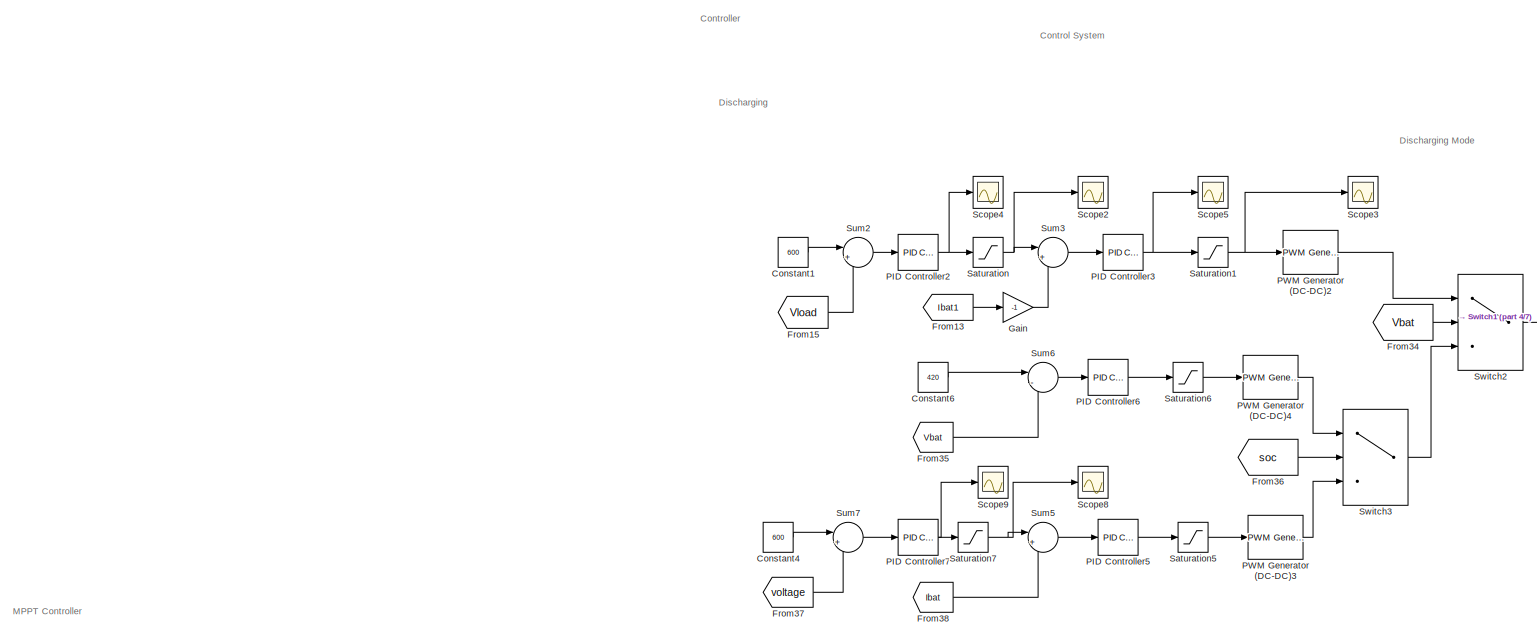
[diagram: root canvas - part 1/7, top left region]
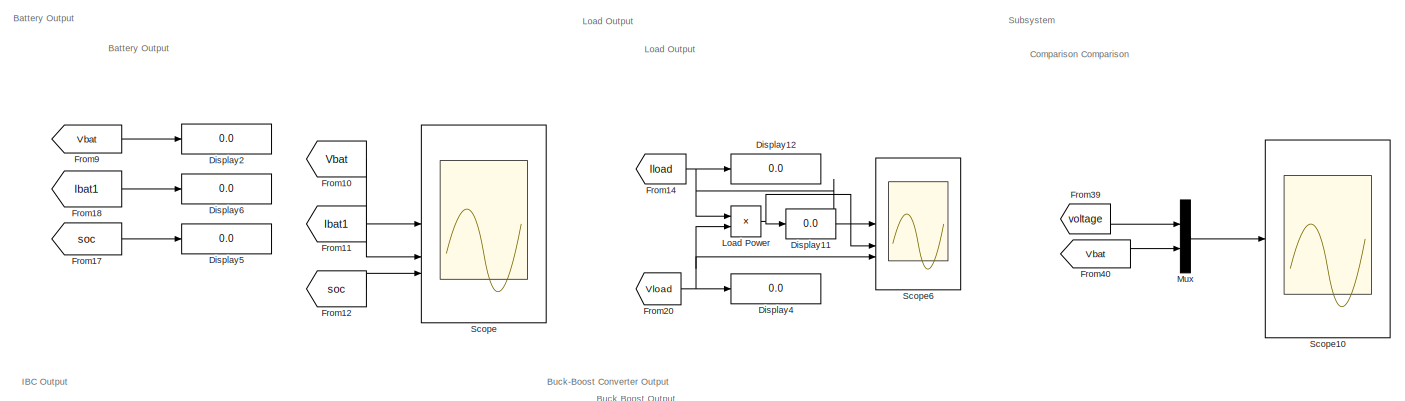
[diagram: root canvas - part 2/7, top right region]
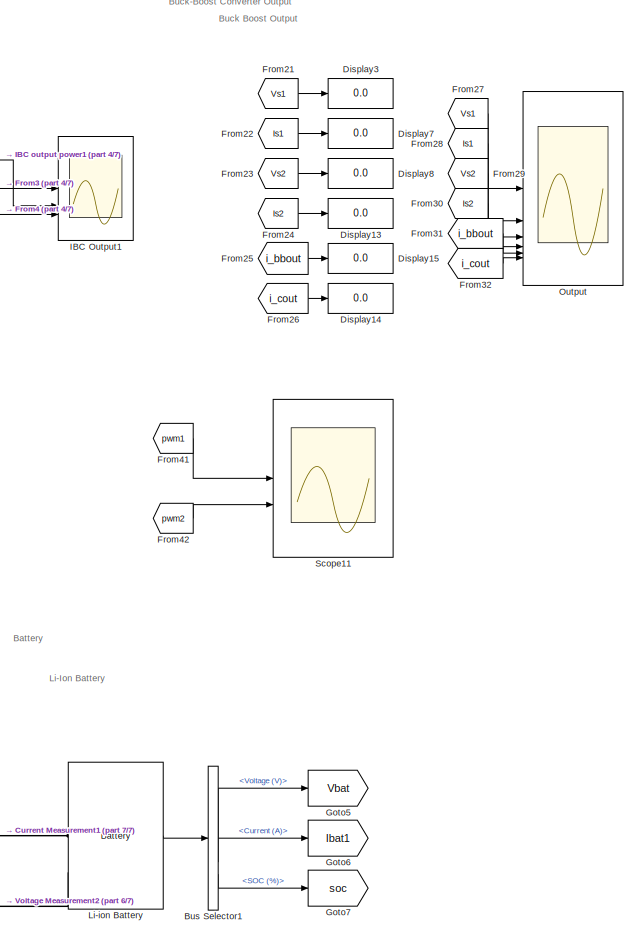
[diagram: root canvas - part 3/7, bottom right region]
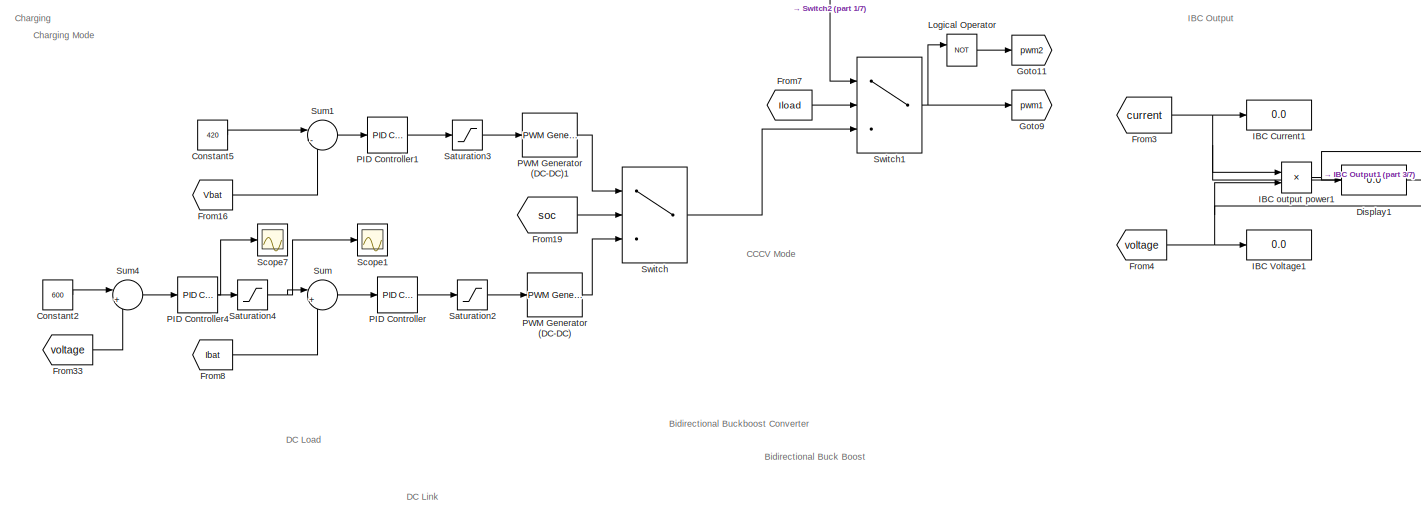
[diagram: root canvas - part 4/7, central region]
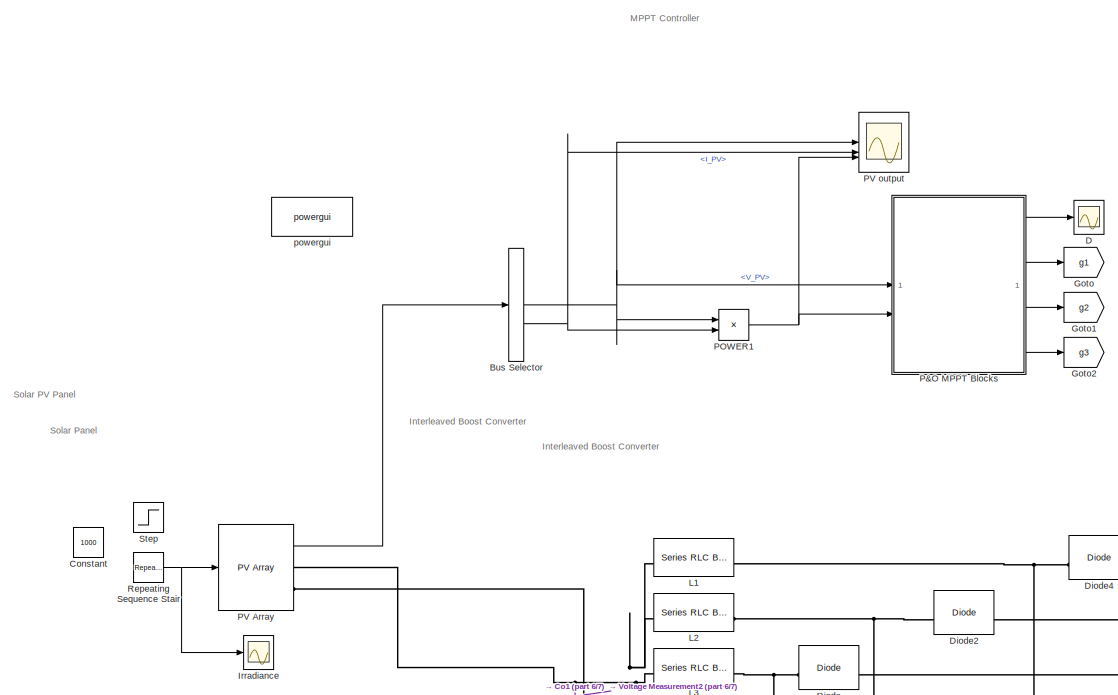
[diagram: root canvas - part 5/7, middle left region]
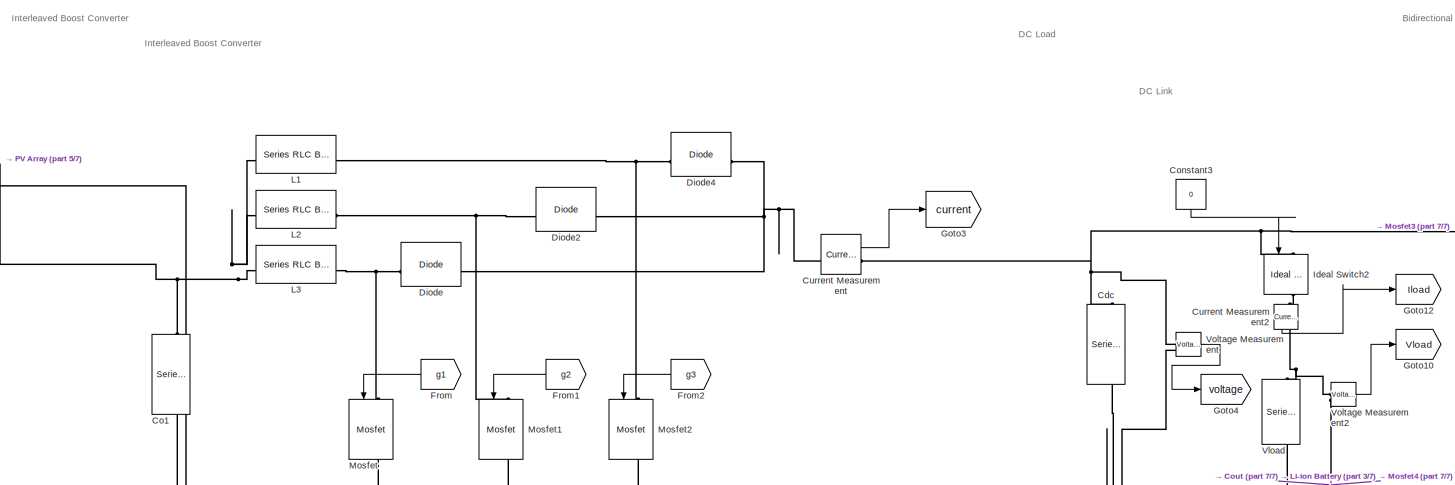
[diagram: root canvas - part 6/7, bottom left region]
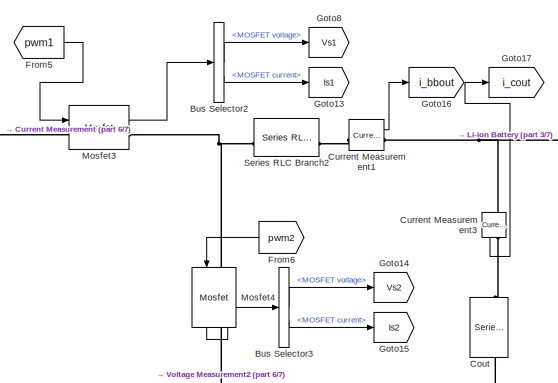
[diagram: root canvas - part 7/7, bottom center region]
MODEL slx_fe34f8055bf5
KIND model
CONFIG AbsTol = auto
CONFIG EnableMultiTasking = off
CONFIG FixedStep = auto
CONFIG MaxStep = auto
CONFIG MinStep = auto
CONFIG RelTol = 1e-3
CONFIG SampleTimeConstraint = Unconstrained
CONFIG SolverName = VariableStepAuto
CONFIG StartTime = 0.0
CONFIG StopTime = 1.2
BLOCK [BusSelector] Bus Selector
  OutputSignals = V_PV,I_PV
BLOCK [BusSelector] Bus Selector1
  OutputSignals = Voltage (V),Current (A),SOC (%)
BLOCK [BusSelector] Bus Selector2
  OutputSignals = MOSFET voltage,MOSFET current
BLOCK [BusSelector] Bus Selector3
  OutputSignals = MOSFET voltage,MOSFET current
BLOCK [Reference] Cdc  REF=spsSeriesRLCBranchLib/Series RLC Branch
  NameLocation = left
  SourceBlock = spsSeriesRLCBranchLib/Series RLC Branch
  SourceType = Series RLC Branch
BLOCK [Reference] Co1  REF=spsSeriesRLCBranchLib/Series RLC Branch
  NameLocation = left
  SourceBlock = spsSeriesRLCBranchLib/Series RLC Branch
  SourceType = Series RLC Branch
BLOCK [Constant] Constant
  Value = 1000
BLOCK [Constant] Constant1
  Value = 600
BLOCK [Constant] Constant2
  Value = 600
BLOCK [Constant] Constant3
  NameLocation = left
  Value = 0
BLOCK [Constant] Constant4
  Value = 600
BLOCK [Constant] Constant5
  Value = 420
BLOCK [Constant] Constant6
  Value = 420
BLOCK [Reference] Cout  REF=spsSeriesRLCBranchLib/Series RLC Branch
  LibrarySourceBlock = sps_lib/Passives/Series RLC Branch
  NameLocation = left
  SourceBlock = spsSeriesRLCBranchLib/Series RLC Branch
  SourceType = Series RLC Branch
BLOCK [Reference] Current Measurement  REF=spsCurrentMeasurementLib/Current Measurement
  LibrarySourceBlock = sps_lib/Sensors and Measurements/Current Measurement
  SourceBlock = spsCurrentMeasurementLib/Current Measurement
  SourceType = Current Measurement
  UserDataPersistent = on
BLOCK [Reference] Current Measurement1  REF=spsCurrentMeasurementLib/Current Measurement
  LibrarySourceBlock = sps_lib/Sensors and Measurements/Current Measurement
  SourceBlock = spsCurrentMeasurementLib/Current Measurement
  SourceType = Current Measurement
  UserDataPersistent = on
BLOCK [Reference] Current Measurement2  REF=spsCurrentMeasurementLib/Current Measurement
  LibrarySourceBlock = sps_lib/Sensors and Measurements/Current Measurement
  NameLocation = left
  SourceBlock = spsCurrentMeasurementLib/Current Measurement
  SourceType = Current Measurement
  UserDataPersistent = on
BLOCK [Reference] Current Measurement3  REF=spsCurrentMeasurementLib/Current Measurement
  LibrarySourceBlock = sps_lib/Sensors and Measurements/Current Measurement
  NameLocation = left
  SourceBlock = spsCurrentMeasurementLib/Current Measurement
  SourceType = Current Measurement
  UserDataPersistent = on
BLOCK [Scope] D
  Floating = off
  NameLocation = right
  NumInputPorts = 1
  ScopeSpecificationString = Simulink.scopes.TimeScopeBlockCfg('CurrentConfiguration', extmgr.ConfigurationSet(extmgr.Configuration('Core','General UI',true,'FigureColor',[1 1 1]),extmgr.Configuration('Core','Source UI',true),extmgr.Configuration('Sources','WiredSimulink',true,'DataLoggingVariableName','ScopeData3'),extmgr.Configuration('Visuals','Time Domain',true,'SerializedDisplays',{struct('MinYLimReal','0.055','MaxYLimRe...<+1736ch>
BLOCK [Reference] Diode  REF=spsDiodeLib/Diode
  SourceBlock = spsDiodeLib/Diode
  SourceType = Diode
BLOCK [Reference] Diode2  REF=spsDiodeLib/Diode
  SourceBlock = spsDiodeLib/Diode
  SourceType = Diode
BLOCK [Reference] Diode4  REF=spsDiodeLib/Diode
  SourceBlock = spsDiodeLib/Diode
  SourceType = Diode
BLOCK [Display] Display1
  Decimation = 1
BLOCK [Display] Display11
  Decimation = 1
BLOCK [Display] Display12
  Decimation = 1
BLOCK [Display] Display13
  Decimation = 1
BLOCK [Display] Display14
  Decimation = 1
BLOCK [Display] Display15
  Decimation = 1
BLOCK [Display] Display2
  Decimation = 1
BLOCK [Display] Display3
  Decimation = 1
BLOCK [Display] Display4
  Decimation = 1
BLOCK [Display] Display5
  Decimation = 1
BLOCK [Display] Display6
  Decimation = 1
BLOCK [Display] Display7
  Decimation = 1
BLOCK [Display] Display8
  Decimation = 1
BLOCK [From] From
  GotoTag = g1
  NameLocation = top
BLOCK [From] From1
  GotoTag = g2
  NameLocation = top
BLOCK [From] From10
  GotoTag = Vbat
BLOCK [From] From11
  GotoTag = Ibat1
BLOCK [From] From12
  GotoTag = soc
BLOCK [From] From13
  GotoTag = Ibat1
BLOCK [From] From14
  GotoTag = Iload
BLOCK [From] From15
  GotoTag = Vload
BLOCK [From] From16
  GotoTag = Vbat
BLOCK [From] From17
  GotoTag = soc
BLOCK [From] From18
  GotoTag = Ibat1
BLOCK [From] From19
  GotoTag = soc
BLOCK [From] From2
  GotoTag = g3
  NameLocation = top
BLOCK [From] From20
  GotoTag = Vload
BLOCK [From] From21
  GotoTag = Vs1
BLOCK [From] From22
  GotoTag = Is1
BLOCK [From] From23
  GotoTag = Vs2
BLOCK [From] From24
  GotoTag = Is2
BLOCK [From] From25
  GotoTag = i_bbout
BLOCK [From] From26
  GotoTag = i_cout
BLOCK [From] From27
  GotoTag = Vs1
BLOCK [From] From28
  GotoTag = Is1
BLOCK [From] From29
  GotoTag = Vs2
BLOCK [From] From3
  GotoTag = current
BLOCK [From] From30
  GotoTag = Is2
BLOCK [From] From31
  GotoTag = i_bbout
BLOCK [From] From32
  GotoTag = i_cout
BLOCK [From] From33
  GotoTag = voltage
BLOCK [From] From34
  GotoTag = Vbat
BLOCK [From] From35
  GotoTag = Vbat
BLOCK [From] From36
  GotoTag = soc
BLOCK [From] From37
  GotoTag = voltage
BLOCK [From] From38
  GotoTag = Ibat
BLOCK [From] From39
  GotoTag = voltage
BLOCK [From] From4
  GotoTag = voltage
BLOCK [From] From40
  GotoTag = Vbat
BLOCK [From] From41
  GotoTag = pwm1
BLOCK [From] From42
  GotoTag = pwm2
BLOCK [From] From5
  GotoTag = pwm1
BLOCK [From] From6
  GotoTag = pwm2
  NameLocation = top
BLOCK [From] From7
  GotoTag = Iload
BLOCK [From] From8
  GotoTag = Ibat
BLOCK [From] From9
  GotoTag = Vbat
BLOCK [Gain] Gain
  Gain = -1
BLOCK [Goto] Goto
  GotoTag = g1
BLOCK [Goto] Goto1
  GotoTag = g2
BLOCK [Goto] Goto10
  GotoTag = Vload
BLOCK [Goto] Goto11
  GotoTag = pwm2
BLOCK [Goto] Goto12
  GotoTag = Iload
BLOCK [Goto] Goto13
  GotoTag = Is1
BLOCK [Goto] Goto14
  GotoTag = Vs2
BLOCK [Goto] Goto15
  GotoTag = Is2
BLOCK [Goto] Goto16
  GotoTag = i_bbout
BLOCK [Goto] Goto17
  GotoTag = i_cout
BLOCK [Goto] Goto2
  GotoTag = g3
BLOCK [Goto] Goto3
  GotoTag = current
BLOCK [Goto] Goto4
  GotoTag = voltage
BLOCK [Goto] Goto5
  GotoTag = Vbat
BLOCK [Goto] Goto6
  GotoTag = Ibat1
BLOCK [Goto] Goto7
  GotoTag = soc
BLOCK [Goto] Goto8
  GotoTag = Vs1
BLOCK [Goto] Goto9
  GotoTag = pwm1
BLOCK [Display] IBC Current1
  Decimation = 1
  NameLocation = top
BLOCK [Scope] IBC Output1
  Floating = off
  NameLocation = right
  NumInputPorts = 3
  ScopeSpecificationString = Simulink.scopes.TimeScopeBlockCfg('CurrentConfiguration', extmgr.ConfigurationSet(extmgr.Configuration('Core','General UI',true,'FigureColor',[1 1 1]),extmgr.Configuration('Core','Source UI',true),extmgr.Configuration('Sources','WiredSimulink',true,'DataLoggingVariableName','ScopeData2'),extmgr.Configuration('Visuals','Time Domain',true,'SerializedDisplays',{struct('MinYLimReal','-1.40466','MaxYLi...<+5829ch>
BLOCK [Display] IBC Voltage1
  Decimation = 1
BLOCK [Product] IBC output power1
BLOCK [Reference] Ideal Switch2  REF=spsIdealSwitchLib/Ideal Switch
  LibrarySourceBlock = sps_lib/Power Electronics/Ideal Switch
  NameLocation = left
  SourceBlock = spsIdealSwitchLib/Ideal Switch
  SourceType = Ideal Switch
BLOCK [Scope] Irradiance
  Floating = off
  NumInputPorts = 1
  ScopeSpecificationString = Simulink.scopes.TimeScopeBlockCfg('CurrentConfiguration', extmgr.ConfigurationSet(extmgr.Configuration('Core','General UI',true,'FigureColor',[1 1 1]),extmgr.Configuration('Core','Source UI',true),extmgr.Configuration('Sources','WiredSimulink',true,'DataLoggingVariableName','ScopeData4'),extmgr.Configuration('Visuals','Time Domain',true,'SerializedDisplays',{struct('MinYLimReal','550.00000','MaxYL...<+1779ch>
BLOCK [Reference] L1  REF=spsSeriesRLCBranchLib/Series RLC Branch
  NameLocation = top
  SourceBlock = spsSeriesRLCBranchLib/Series RLC Branch
  SourceType = Series RLC Branch
BLOCK [Reference] L2  REF=spsSeriesRLCBranchLib/Series RLC Branch
  NameLocation = top
  SourceBlock = spsSeriesRLCBranchLib/Series RLC Branch
  SourceType = Series RLC Branch
BLOCK [Reference] L3  REF=spsSeriesRLCBranchLib/Series RLC Branch
  NameLocation = top
  SourceBlock = spsSeriesRLCBranchLib/Series RLC Branch
  SourceType = Series RLC Branch
BLOCK [Reference] Li-ion Battery  REF=spsBatteryLib/Battery
  LibrarySourceBlock = sps_lib/Sources/Battery
  SourceBlock = spsBatteryLib/Battery
  SourceType = Battery
BLOCK [Product] Load Power
BLOCK [Logic] Logical Operator
  AllPortsSameDT = off
  Operator = NOT
  OutDataTypeStr = boolean
BLOCK [Reference] Mosfet  REF=spsMosfetLib/Mosfet
  NameLocation = left
  SourceBlock = spsMosfetLib/Mosfet
  SourceType = Mosfet
BLOCK [Reference] Mosfet1  REF=spsMosfetLib/Mosfet
  NameLocation = left
  SourceBlock = spsMosfetLib/Mosfet
  SourceType = Mosfet
BLOCK [Reference] Mosfet2  REF=spsMosfetLib/Mosfet
  NameLocation = left
  SourceBlock = spsMosfetLib/Mosfet
  SourceType = Mosfet
BLOCK [Reference] Mosfet3  REF=spsMosfetLib/Mosfet
  LibrarySourceBlock = sps_lib/Power Electronics/Mosfet
  SourceBlock = spsMosfetLib/Mosfet
  SourceType = Mosfet
BLOCK [Reference] Mosfet4  REF=spsMosfetLib/Mosfet
  LibrarySourceBlock = sps_lib/Power Electronics/Mosfet
  NameLocation = left
  SourceBlock = spsMosfetLib/Mosfet
  SourceType = Mosfet
BLOCK [Mux] Mux
  DisplayOption = bar
  Inputs = 2
BLOCK [Scope] Output
  Floating = off
  NameLocation = right
  NumInputPorts = 6
  ScopeSpecificationString = Simulink.scopes.TimeScopeBlockCfg('CurrentConfiguration', extmgr.ConfigurationSet(extmgr.Configuration('Core','General UI',true,'FigureColor',[1 1 1]),extmgr.Configuration('Core','Source UI',true),extmgr.Configuration('Sources','WiredSimulink',true,'DataLoggingVariableName','ScopeData1'),extmgr.Configuration('Visuals','Time Domain',true,'SerializedDisplays',{struct('MinYLimReal','-115.39116','MaxY...<+8508ch>
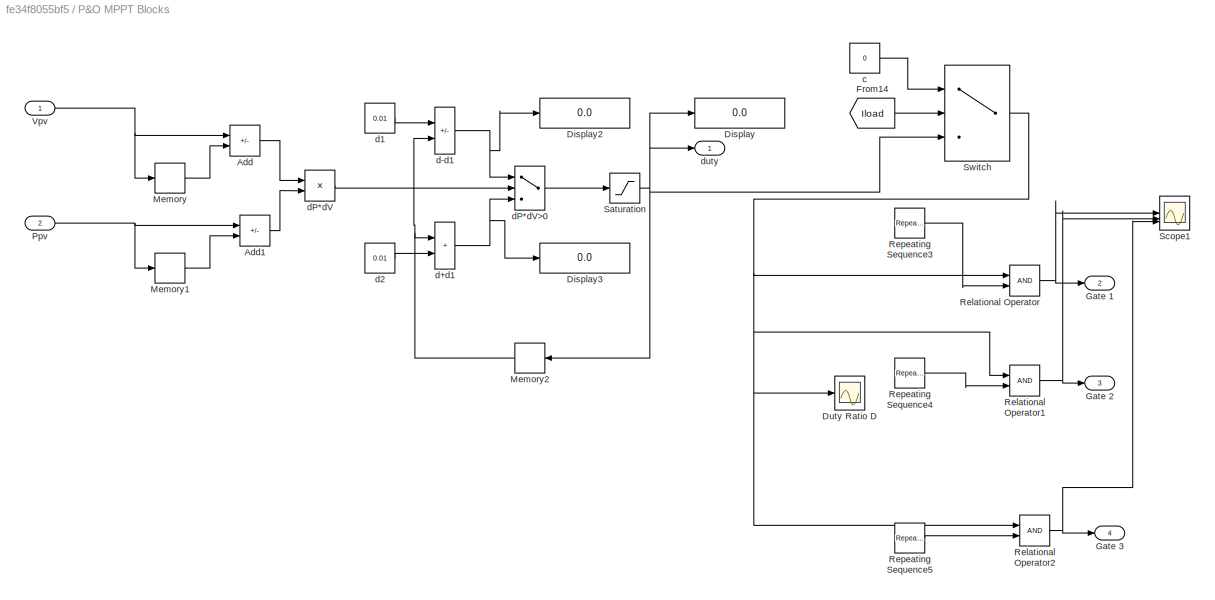
BLOCK [SubSystem] P&O MPPT Blocks
BLOCK [Sum] P&O MPPT Blocks/Add
  IconShape = rectangular
  Inputs = +-
BLOCK [Sum] P&O MPPT Blocks/Add1
  IconShape = rectangular
  Inputs = +-
BLOCK [Display] P&O MPPT Blocks/Display
  Decimation = 1
BLOCK [Display] P&O MPPT Blocks/Display2
  Decimation = 1
BLOCK [Display] P&O MPPT Blocks/Display3
  Decimation = 1
BLOCK [Scope] P&O MPPT Blocks/Duty Ratio D
  Floating = off
  NumInputPorts = 1
  ScopeSpecificationString = Simulink.scopes.TimeScopeBlockCfg('CurrentConfiguration', extmgr.ConfigurationSet(extmgr.Configuration('Core','General UI',true,'FigureColor',[1 1 1]),extmgr.Configuration('Core','Source UI',true),extmgr.Configuration('Sources','WiredSimulink',true,'DataLoggingVariableName','ScopeData2'),extmgr.Configuration('Visuals','Time Domain',true,'SerializedDisplays',{struct('MinYLimReal','-0.00875','MaxYLi...<+1759ch>
BLOCK [From] P&O MPPT Blocks/From14
  GotoTag = Iload
BLOCK [Outport] P&O MPPT Blocks/Gate 1
  Port = 2
  VectorParamsAs1DForOutWhenUnconnected = off
BLOCK [Outport] P&O MPPT Blocks/Gate 2
  Port = 3
  VectorParamsAs1DForOutWhenUnconnected = off
BLOCK [Outport] P&O MPPT Blocks/Gate 3
  Port = 4
  VectorParamsAs1DForOutWhenUnconnected = off
BLOCK [Memory] P&O MPPT Blocks/Memory
  InheritSampleTime = on
BLOCK [Memory] P&O MPPT Blocks/Memory1
  InheritSampleTime = on
BLOCK [Memory] P&O MPPT Blocks/Memory2
  InheritSampleTime = on
  NameLocation = top
BLOCK [Inport] P&O MPPT Blocks/Ppv
  Port = 2
BLOCK [RelationalOperator] P&O MPPT Blocks/Relational Operator
  InputSameDT = off
  OutDataTypeStr = boolean
  RndMeth = Simplest
BLOCK [RelationalOperator] P&O MPPT Blocks/Relational Operator1
  InputSameDT = off
  OutDataTypeStr = boolean
  RndMeth = Simplest
BLOCK [RelationalOperator] P&O MPPT Blocks/Relational Operator2
  InputSameDT = off
  OutDataTypeStr = boolean
  RndMeth = Simplest
BLOCK [Reference] P&O MPPT Blocks/Repeating Sequence3  REF=simulink/Sources/Repeating
Sequence
  SourceBlock = simulink/Sources/Repeating\nSequence
  SourceType = Repeating table
BLOCK [Reference] P&O MPPT Blocks/Repeating Sequence4  REF=simulink/Sources/Repeating
Sequence
  SourceBlock = simulink/Sources/Repeating\nSequence
  SourceType = Repeating table
BLOCK [Reference] P&O MPPT Blocks/Repeating Sequence5  REF=simulink/Sources/Repeating
Sequence
  SourceBlock = simulink/Sources/Repeating\nSequence
  SourceType = Repeating table
BLOCK [Saturate] P&O MPPT Blocks/Saturation
  LowerLimit = 0.1
  SampleTime = 6e-4
  UpperLimit = 0.9
BLOCK [Scope] P&O MPPT Blocks/Scope1
  Floating = off
  NumInputPorts = 3
  ScopeSpecificationString = Simulink.scopes.TimeScopeBlockCfg('CurrentConfiguration', extmgr.ConfigurationSet(extmgr.Configuration('Core','General UI',true),extmgr.Configuration('Core','Source UI',true),extmgr.Configuration('Sources','WiredSimulink',true,'DataLoggingVariableName','ScopeData1'),extmgr.Configuration('Visuals','Time Domain',true,'SerializedDisplays',{struct('MinYLimReal','-0.125','MaxYLimReal','1.125','YLabelRe...<+2843ch>
BLOCK [Switch] P&O MPPT Blocks/Switch
  Criteria = u2 > Threshold
  InputSameDT = off
  SaturateOnIntegerOverflow = off
  Threshold = 0.1
BLOCK [Inport] P&O MPPT Blocks/Vpv
BLOCK [Constant] P&O MPPT Blocks/c
  Value = 0
BLOCK [Sum] P&O MPPT Blocks/d+d1
  IconShape = rectangular
BLOCK [Sum] P&O MPPT Blocks/d-d1
  IconShape = rectangular
  Inputs = -+
BLOCK [Constant] P&O MPPT Blocks/d1
  Value = 0.01
BLOCK [Constant] P&O MPPT Blocks/d2
  Value = 0.01
BLOCK [Product] P&O MPPT Blocks/dP*dV
  RndMeth = Zero
BLOCK [Switch] P&O MPPT Blocks/dP*dV>0
  Criteria = u2 > Threshold
  InputSameDT = off
  SaturateOnIntegerOverflow = off
BLOCK [Outport] P&O MPPT Blocks/duty
BLOCK [Reference] PID Controller  REF=slpidlib/PID Controller
  LibrarySourceBlock = simulink/Continuous/PID Controller
  SourceBlock = slpidlib/PID Controller
  SourceType = PID 1dof
BLOCK [Reference] PID Controller1  REF=slpidlib/PID Controller
  LibrarySourceBlock = simulink/Continuous/PID Controller
  SourceBlock = slpidlib/PID Controller
  SourceType = PID 1dof
BLOCK [Reference] PID Controller2  REF=slpidlib/PID Controller
  LibrarySourceBlock = simulink/Continuous/PID Controller
  SourceBlock = slpidlib/PID Controller
  SourceType = PID 1dof
BLOCK [Reference] PID Controller3  REF=slpidlib/PID Controller
  LibrarySourceBlock = simulink/Continuous/PID Controller
  SourceBlock = slpidlib/PID Controller
  SourceType = PID 1dof
BLOCK [Reference] PID Controller4  REF=slpidlib/PID Controller
  LibrarySourceBlock = simulink/Continuous/PID Controller
  SourceBlock = slpidlib/PID Controller
  SourceType = PID 1dof
BLOCK [Reference] PID Controller5  REF=slpidlib/PID Controller
  LibrarySourceBlock = simulink/Continuous/PID Controller
  SourceBlock = slpidlib/PID Controller
  SourceType = PID 1dof
BLOCK [Reference] PID Controller6  REF=slpidlib/PID Controller
  LibrarySourceBlock = simulink/Continuous/PID Controller
  SourceBlock = slpidlib/PID Controller
  SourceType = PID 1dof
BLOCK [Reference] PID Controller7  REF=slpidlib/PID Controller
  LibrarySourceBlock = simulink/Continuous/PID Controller
  SourceBlock = slpidlib/PID Controller
  SourceType = PID 1dof
BLOCK [Product] POWER1
BLOCK [Reference] PV Array  REF=spsPVArrayLib/PV Array
  SourceBlock = spsPVArrayLib/PV Array
  SourceType = PV array
BLOCK [Scope] PV output
  Floating = off
  NumInputPorts = 3
  ScopeSpecificationString = Simulink.scopes.TimeScopeBlockCfg('CurrentConfiguration', extmgr.ConfigurationSet(extmgr.Configuration('Core','General UI',true,'FigureColor',[1 1 1]),extmgr.Configuration('Core','Source UI',true),extmgr.Configuration('Sources','WiredSimulink',true,'DataLoggingVariableName','ScopeData5'),extmgr.Configuration('Visuals','Time Domain',true,'SerializedDisplays',{struct('MinYLimReal','-47.1745','MaxYLi...<+3119ch>
BLOCK [Reference] PWM Generator (DC-DC)  REF=spsPWMGeneratorDCDCLib/PWM Generator
(DC-DC)
  LibrarySourceBlock = sps_lib/Power Electronics/Power Electronics Control/PWM Generator\n(DC-DC)
  SourceBlock = spsPWMGeneratorDCDCLib/PWM Generator\n(DC-DC)
  SourceType = PWM Generator (DC-DC)
BLOCK [Reference] PWM Generator (DC-DC)1  REF=spsPWMGeneratorDCDCLib/PWM Generator
(DC-DC)
  LibrarySourceBlock = sps_lib/Power Electronics/Power Electronics Control/PWM Generator\n(DC-DC)
  SourceBlock = spsPWMGeneratorDCDCLib/PWM Generator\n(DC-DC)
  SourceType = PWM Generator (DC-DC)
BLOCK [Reference] PWM Generator (DC-DC)2  REF=spsPWMGeneratorDCDCLib/PWM Generator
(DC-DC)
  LibrarySourceBlock = sps_lib/Power Electronics/Power Electronics Control/PWM Generator\n(DC-DC)
  SourceBlock = spsPWMGeneratorDCDCLib/PWM Generator\n(DC-DC)
  SourceType = PWM Generator (DC-DC)
BLOCK [Reference] PWM Generator (DC-DC)3  REF=spsPWMGeneratorDCDCLib/PWM Generator
(DC-DC)
  LibrarySourceBlock = sps_lib/Power Electronics/Power Electronics Control/PWM Generator\n(DC-DC)
  SourceBlock = spsPWMGeneratorDCDCLib/PWM Generator\n(DC-DC)
  SourceType = PWM Generator (DC-DC)
BLOCK [Reference] PWM Generator (DC-DC)4  REF=spsPWMGeneratorDCDCLib/PWM Generator
(DC-DC)
  LibrarySourceBlock = sps_lib/Power Electronics/Power Electronics Control/PWM Generator\n(DC-DC)
  SourceBlock = spsPWMGeneratorDCDCLib/PWM Generator\n(DC-DC)
  SourceType = PWM Generator (DC-DC)
BLOCK [Reference] Repeating Sequence Stair  REF=simulink/Sources/Repeating
Sequence
Stair
  SourceBlock = simulink/Sources/Repeating\nSequence\nStair
  SourceType = Repeating Sequence Stair
BLOCK [Saturate] Saturation
  LowerLimit = 0
  UpperLimit = 30
BLOCK [Saturate] Saturation1
  LowerLimit = 0.1
  UpperLimit = 0.6
BLOCK [Saturate] Saturation2
  LowerLimit = 0.1
  UpperLimit = 22
BLOCK [Saturate] Saturation3
  LowerLimit = 0.1
  UpperLimit = 0.9
BLOCK [Saturate] Saturation4
  LowerLimit = 0
  UpperLimit = 10
BLOCK [Saturate] Saturation5
  LowerLimit = 0.1
  UpperLimit = 22
BLOCK [Saturate] Saturation6
  LowerLimit = 0.1
  UpperLimit = 0.9
BLOCK [Saturate] Saturation7
  LowerLimit = 0
  UpperLimit = 10
BLOCK [Scope] Scope
  Floating = off
  NumInputPorts = 3
  ScopeSpecificationString = Simulink.scopes.TimeScopeBlockCfg('CurrentConfiguration', extmgr.ConfigurationSet(extmgr.Configuration('Core','General UI',true,'FigureColor',[1 1 1]),extmgr.Configuration('Core','Source UI',true),extmgr.Configuration('Sources','WiredSimulink',true,'DataLoggingVariableName','ScopeData1'),extmgr.Configuration('Visuals','Time Domain',true,'SerializedDisplays',{struct('MinYLimReal','388.40914','MaxYL...<+3421ch>
BLOCK [Scope] Scope1
  Floating = off
  NumInputPorts = 1
  ScopeSpecificationString = Simulink.scopes.TimeScopeBlockCfg('CurrentConfiguration', extmgr.ConfigurationSet(extmgr.Configuration('Core','General UI',true),extmgr.Configuration('Core','Source UI',true),extmgr.Configuration('Sources','WiredSimulink',true,'DataLoggingVariableName','ScopeData1'),extmgr.Configuration('Visuals','Time Domain',true,'SerializedDisplays',{struct('MinYLimReal','0.85','MaxYLimReal','1.05','YLabelReal'...<+1490ch>
BLOCK [Scope] Scope10
  Floating = off
  NumInputPorts = 1
  ScopeSpecificationString = Simulink.scopes.TimeScopeBlockCfg('CurrentConfiguration', extmgr.ConfigurationSet(extmgr.Configuration('Core','General UI',true,'FigureColor',[1 1 1]),extmgr.Configuration('Core','Source UI',true),extmgr.Configuration('Sources','WiredSimulink',true,'DataLoggingVariableName','ScopeData1'),extmgr.Configuration('Visuals','Time Domain',true,'SerializedDisplays',{struct('MinYLimReal','-171.16426','MaxY...<+1943ch>
BLOCK [Scope] Scope11
  Floating = off
  NumInputPorts = 2
  ScopeSpecificationString = Simulink.scopes.TimeScopeBlockCfg('CurrentConfiguration', extmgr.ConfigurationSet(extmgr.Configuration('Core','General UI',true,'FigureColor',[1 1 1]),extmgr.Configuration('Core','Source UI',true),extmgr.Configuration('Sources','WiredSimulink',true,'DataLoggingVariableName','ScopeData1'),extmgr.Configuration('Visuals','Time Domain',true,'SerializedDisplays',{struct('MinYLimReal','-0.125','MaxYLimR...<+3972ch>
BLOCK [Scope] Scope2
  Floating = off
  NumInputPorts = 1
  ScopeSpecificationString = Simulink.scopes.TimeScopeBlockCfg('CurrentConfiguration', extmgr.ConfigurationSet(extmgr.Configuration('Core','General UI',true),extmgr.Configuration('Core','Source UI',true),extmgr.Configuration('Sources','WiredSimulink',true,'DataLoggingVariableName','ScopeData7'),extmgr.Configuration('Visuals','Time Domain',true,'SerializedDisplays',{struct('MinYLimReal','0.85','MaxYLimReal','1.05','YLabelReal'...<+1490ch>
BLOCK [Scope] Scope3
  Floating = off
  NumInputPorts = 1
  ScopeSpecificationString = Simulink.scopes.TimeScopeBlockCfg('CurrentConfiguration', extmgr.ConfigurationSet(extmgr.Configuration('Core','General UI',true),extmgr.Configuration('Core','Source UI',true),extmgr.Configuration('Sources','WiredSimulink',true,'DataLoggingVariableName','ScopeData8'),extmgr.Configuration('Visuals','Time Domain',true,'SerializedDisplays',{struct('MinYLimReal','0.17195','MaxYLimReal','0.68089','YLabe...<+1486ch>
BLOCK [Scope] Scope4
  Floating = off
  NumInputPorts = 1
  ScopeSpecificationString = Simulink.scopes.TimeScopeBlockCfg('CurrentConfiguration', extmgr.ConfigurationSet(extmgr.Configuration('Core','General UI',true),extmgr.Configuration('Core','Source UI',true),extmgr.Configuration('Sources','WiredSimulink',true,'DataLoggingVariableName','ScopeData9'),extmgr.Configuration('Visuals','Time Domain',true,'SerializedDisplays',{struct('MinYLimReal','-0.11875','MaxYLimReal','1.06875','YLab...<+1492ch>
BLOCK [Scope] Scope5
  Floating = off
  NumInputPorts = 1
  ScopeSpecificationString = Simulink.scopes.TimeScopeBlockCfg('CurrentConfiguration', extmgr.ConfigurationSet(extmgr.Configuration('Core','General UI',true),extmgr.Configuration('Core','Source UI',true),extmgr.Configuration('Sources','WiredSimulink',true,'DataLoggingVariableName','ScopeData10'),extmgr.Configuration('Visuals','Time Domain',true,'SerializedDisplays',{struct('MinYLimReal','0.09505','MaxYLimReal','1.04499','YLab...<+1462ch>
BLOCK [Scope] Scope6
  Floating = off
  NumInputPorts = 3
  ScopeSpecificationString = Simulink.scopes.TimeScopeBlockCfg('CurrentConfiguration', extmgr.ConfigurationSet(extmgr.Configuration('Core','General UI',true,'FigureColor',[1 1 1]),extmgr.Configuration('Core','Source UI',true),extmgr.Configuration('Sources','WiredSimulink',true,'DataLoggingVariableName','ScopeData11'),extmgr.Configuration('Visuals','Time Domain',true,'SerializedDisplays',{struct('MinYLimReal','-2.15104','MaxYL...<+4227ch>
BLOCK [Scope] Scope7
  Floating = off
  NumInputPorts = 1
  ScopeSpecificationString = Simulink.scopes.TimeScopeBlockCfg('CurrentConfiguration', extmgr.ConfigurationSet(extmgr.Configuration('Core','General UI',true),extmgr.Configuration('Core','Source UI',true),extmgr.Configuration('Sources','WiredSimulink',true,'DataLoggingVariableName','ScopeData2'),extmgr.Configuration('Visuals','Time Domain',true,'SerializedDisplays',{struct('MinYLimReal','0.47008','MaxYLimReal','0.99786','YLabe...<+1561ch>
BLOCK [Scope] Scope8
  Floating = off
  NumInputPorts = 1
  ScopeSpecificationString = Simulink.scopes.TimeScopeBlockCfg('CurrentConfiguration', extmgr.ConfigurationSet(extmgr.Configuration('Core','General UI',true),extmgr.Configuration('Core','Source UI',true),extmgr.Configuration('Sources','WiredSimulink',true,'DataLoggingVariableName','ScopeData1'),extmgr.Configuration('Visuals','Time Domain',true,'SerializedDisplays',{struct('MinYLimReal','0.85','MaxYLimReal','1.05','YLabelReal'...<+1490ch>
BLOCK [Scope] Scope9
  Floating = off
  NumInputPorts = 1
  ScopeSpecificationString = Simulink.scopes.TimeScopeBlockCfg('CurrentConfiguration', extmgr.ConfigurationSet(extmgr.Configuration('Core','General UI',true),extmgr.Configuration('Core','Source UI',true),extmgr.Configuration('Sources','WiredSimulink',true,'DataLoggingVariableName','ScopeData2'),extmgr.Configuration('Visuals','Time Domain',true,'SerializedDisplays',{struct('MinYLimReal','0.47008','MaxYLimReal','0.99786','YLabe...<+1561ch>
BLOCK [Reference] Series RLC Branch2  REF=spsSeriesRLCBranchLib/Series RLC Branch
  LibrarySourceBlock = sps_lib/Passives/Series RLC Branch
  SourceBlock = spsSeriesRLCBranchLib/Series RLC Branch
  SourceType = Series RLC Branch
BLOCK [Step] Step
  After = 500
  Before = 1000
  SampleTime = 0
  Time = 0.25
BLOCK [Sum] Sum
  Inputs = |+-
BLOCK [Sum] Sum1
  Inputs = |-+
BLOCK [Sum] Sum2
  Inputs = |+-
BLOCK [Sum] Sum3
  Inputs = |+-
BLOCK [Sum] Sum4
  Inputs = |+-
BLOCK [Sum] Sum5
  Inputs = |+-
BLOCK [Sum] Sum6
  Inputs = |-+
BLOCK [Sum] Sum7
  Inputs = |+-
BLOCK [Switch] Switch
  Criteria = u2 > Threshold
  InputSameDT = off
  SaturateOnIntegerOverflow = off
  Threshold = 80.1
BLOCK [Switch] Switch1
  Criteria = u2 > Threshold
  InputSameDT = off
  SaturateOnIntegerOverflow = off
  Threshold = 0.1
BLOCK [Switch] Switch2
  Criteria = u2 > Threshold
  InputSameDT = off
  SaturateOnIntegerOverflow = off
  Threshold = 270
BLOCK [Switch] Switch3
  Criteria = u2 > Threshold
  InputSameDT = off
  SaturateOnIntegerOverflow = off
  Threshold = 80.1
BLOCK [Reference] Vload  REF=spsSeriesRLCBranchLib/Series RLC Branch
  NameLocation = left
  SourceBlock = spsSeriesRLCBranchLib/Series RLC Branch
  SourceType = Series RLC Branch
BLOCK [Reference] Voltage Measurement  REF=spsVoltageMeasurementLib/Voltage Measurement
  LibrarySourceBlock = sps_lib/Sensors and Measurements/Voltage Measurement
  SourceBlock = spsVoltageMeasurementLib/Voltage Measurement
  SourceType = Voltage Measurement
  UserDataPersistent = on
BLOCK [Reference] Voltage Measurement2  REF=spsVoltageMeasurementLib/Voltage Measurement
  LibrarySourceBlock = sps_lib/Sensors and Measurements/Voltage Measurement
  SourceBlock = spsVoltageMeasurementLib/Voltage Measurement
  SourceType = Voltage Measurement
  UserDataPersistent = on
BLOCK [Reference] powergui  REF=sps_lib/powergui
  LibrarySourceBlock = sps_lib/powergui
  Priority = 1
  SourceBlock = sps_lib/powergui
  SourceType = PSB option menu block
ANNOTATION (root): Battery Output
ANNOTATION (root): Bidirectional Buck Boost
ANNOTATION (root): Buck Boost Output
ANNOTATION (root): CCCV Mode
ANNOTATION (root): Charging Mode
ANNOTATION (root): Comparison Comparison
ANNOTATION (root): Control System
ANNOTATION (root): DC Link
ANNOTATION (root): Discharging Mode
ANNOTATION (root): IBC Output
ANNOTATION (root): Li-Ion Battery
ANNOTATION (root): Load Output
ANNOTATION (root): Solar Panel
ANNOTATION (root): Interleaved Boost Converter
ANNOTATION (root): MPPT Controller
ANNOTATION (root): Battery
ANNOTATION (root): Bidirectional Buckboost Converter
ANNOTATION (root): Buck-Boost Converter Output
ANNOTATION (root): Charging
ANNOTATION (root): Controller
ANNOTATION (root): DC Load
ANNOTATION (root): Discharging
ANNOTATION (root): Solar PV Panel
ANNOTATION (root): Subsystem
LINE Bus Selector1:1 -> Goto5:1
LINE Bus Selector1:2 -> Goto6:1
LINE Bus Selector1:3 -> Goto7:1
LINE Bus Selector2:1 -> Goto8:1
LINE Bus Selector2:2 -> Goto13:1
LINE Bus Selector3:1 -> Goto14:1
LINE Bus Selector3:2 -> Goto15:1
NET Bus Selector:1 -> P&O MPPT Blocks:1, POWER1:1, PV output:1
NET Bus Selector:2 -> POWER1:2, PV output:2
LINE Constant1:1 -> Sum2:1
LINE Constant2:1 -> Sum4:1
LINE Constant3:1 -> Ideal Switch2:1
LINE Constant4:1 -> Sum7:1
LINE Constant5:1 -> Sum1:1
LINE Constant6:1 -> Sum6:1
LINE Current Measurement1:1 -> Goto16:1
LINE Current Measurement2:1 -> Goto12:1
LINE Current Measurement3:1 -> Goto17:1
LINE Current Measurement:1 -> Goto3:1
LINE From10:1 -> Scope:1
LINE From11:1 -> Scope:2
LINE From12:1 -> Scope:3
LINE From13:1 -> Gain:1
NET From14:1 -> Display12:1, Load Power:1, Scope6:1
LINE From15:1 -> Sum2:2
LINE From16:1 -> Sum1:2
LINE From17:1 -> Display5:1
LINE From18:1 -> Display6:1
LINE From19:1 -> Switch:2
LINE From1:1 -> Mosfet1:1
NET From20:1 -> Display4:1, Load Power:2, Scope6:3
LINE From21:1 -> Display3:1
LINE From22:1 -> Display7:1
LINE From23:1 -> Display8:1
LINE From24:1 -> Display13:1
LINE From25:1 -> Display15:1
LINE From26:1 -> Display14:1
LINE From27:1 -> Output:1
LINE From28:1 -> Output:2
LINE From29:1 -> Output:3
LINE From2:1 -> Mosfet2:1
LINE From30:1 -> Output:4
LINE From31:1 -> Output:5
LINE From32:1 -> Output:6
LINE From33:1 -> Sum4:2
LINE From34:1 -> Switch2:2
LINE From35:1 -> Sum6:2
LINE From36:1 -> Switch3:2
LINE From37:1 -> Sum7:2
LINE From38:1 -> Sum5:2
LINE From39:1 -> Mux:1
NET From3:1 -> IBC Current1:1, IBC Output1:1, IBC output power1:1
LINE From40:1 -> Mux:2
LINE From41:1 -> Scope11:1
LINE From42:1 -> Scope11:2
NET From4:1 -> IBC Output1:3, IBC Voltage1:1, IBC output power1:2
LINE From5:1 -> Mosfet3:1
LINE From6:1 -> Mosfet4:1
LINE From7:1 -> Switch1:2
LINE From8:1 -> Sum:2
LINE From9:1 -> Display2:1
LINE From:1 -> Mosfet:1
LINE Gain:1 -> Sum3:2
NET IBC output power1:1 -> Display1:1, IBC Output1:2
LINE Li-ion Battery:1 -> Bus Selector1:1
NET Load Power:1 -> Display11:1, Scope6:2
LINE Logical Operator:1 -> Goto11:1
LINE Mosfet3:1 -> Bus Selector2:1
LINE Mosfet4:1 -> Bus Selector3:1
LINE Mux:1 -> Scope10:1
LINE P&O MPPT Blocks/Add1:1 -> P&O MPPT Blocks/dP*dV:2
LINE P&O MPPT Blocks/Add:1 -> P&O MPPT Blocks/dP*dV:1
LINE P&O MPPT Blocks/From14:1 -> P&O MPPT Blocks/Switch:2
LINE P&O MPPT Blocks/Memory1:1 -> P&O MPPT Blocks/Add1:2
NET P&O MPPT Blocks/Memory2:1 -> P&O MPPT Blocks/d+d1:1, P&O MPPT Blocks/d-d1:2
LINE P&O MPPT Blocks/Memory:1 -> P&O MPPT Blocks/Add:2
NET P&O MPPT Blocks/Ppv:1 -> P&O MPPT Blocks/Add1:1, P&O MPPT Blocks/Memory1:1
NET P&O MPPT Blocks/Relational Operator1:1 -> P&O MPPT Blocks/Gate 2:1, P&O MPPT Blocks/Scope1:2
NET P&O MPPT Blocks/Relational Operator2:1 -> P&O MPPT Blocks/Gate 3:1, P&O MPPT Blocks/Scope1:3
NET P&O MPPT Blocks/Relational Operator:1 -> P&O MPPT Blocks/Gate 1:1, P&O MPPT Blocks/Scope1:1
LINE P&O MPPT Blocks/Repeating Sequence3:1 -> P&O MPPT Blocks/Relational Operator:2
LINE P&O MPPT Blocks/Repeating Sequence4:1 -> P&O MPPT Blocks/Relational Operator1:2
LINE P&O MPPT Blocks/Repeating Sequence5:1 -> P&O MPPT Blocks/Relational Operator2:2
NET P&O MPPT Blocks/Saturation:1 -> P&O MPPT Blocks/Display:1, P&O MPPT Blocks/Memory2:1, P&O MPPT Blocks/Switch:3, P&O MPPT Blocks/duty:1
NET P&O MPPT Blocks/Switch:1 -> P&O MPPT Blocks/Duty Ratio D:1, P&O MPPT Blocks/Relational Operator1:1, P&O MPPT Blocks/Relational Operator2:1, P&O MPPT Blocks/Relational Operator:1
NET P&O MPPT Blocks/Vpv:1 -> P&O MPPT Blocks/Add:1, P&O MPPT Blocks/Memory:1
LINE P&O MPPT Blocks/c:1 -> P&O MPPT Blocks/Switch:1
NET P&O MPPT Blocks/d+d1:1 -> P&O MPPT Blocks/Display3:1, P&O MPPT Blocks/dP*dV>0:3
NET P&O MPPT Blocks/d-d1:1 -> P&O MPPT Blocks/Display2:1, P&O MPPT Blocks/dP*dV>0:1
LINE P&O MPPT Blocks/d1:1 -> P&O MPPT Blocks/d-d1:1
LINE P&O MPPT Blocks/d2:1 -> P&O MPPT Blocks/d+d1:2
LINE P&O MPPT Blocks/dP*dV:1 -> P&O MPPT Blocks/dP*dV>0:2
LINE P&O MPPT Blocks/dP*dV>0:1 -> P&O MPPT Blocks/Saturation:1
LINE P&O MPPT Blocks:1 -> D:1
LINE P&O MPPT Blocks:2 -> Goto:1
LINE P&O MPPT Blocks:3 -> Goto1:1
LINE P&O MPPT Blocks:4 -> Goto2:1
LINE PID Controller1:1 -> Saturation3:1
NET PID Controller2:1 -> Saturation:1, Scope4:1
NET PID Controller3:1 -> Saturation1:1, Scope5:1
NET PID Controller4:1 -> Saturation4:1, Scope7:1
LINE PID Controller5:1 -> Saturation5:1
LINE PID Controller6:1 -> Saturation6:1
NET PID Controller7:1 -> Saturation7:1, Scope9:1
LINE PID Controller:1 -> Saturation2:1
NET POWER1:1 -> P&O MPPT Blocks:2, PV output:3
LINE PV Array:1 -> Bus Selector:1
LINE PWM Generator (DC-DC)1:1 -> Switch:1
LINE PWM Generator (DC-DC)2:1 -> Switch2:1
LINE PWM Generator (DC-DC)3:1 -> Switch3:3
LINE PWM Generator (DC-DC)4:1 -> Switch3:1
LINE PWM Generator (DC-DC):1 -> Switch:3
NET Repeating Sequence Stair:1 -> Irradiance:1, PV Array:1
NET Saturation1:1 -> PWM Generator (DC-DC)2:1, Scope3:1
LINE Saturation2:1 -> PWM Generator (DC-DC):1
LINE Saturation3:1 -> PWM Generator (DC-DC)1:1
NET Saturation4:1 -> Scope1:1, Sum:1
LINE Saturation5:1 -> PWM Generator (DC-DC)3:1
LINE Saturation6:1 -> PWM Generator (DC-DC)4:1
NET Saturation7:1 -> Scope8:1, Sum5:1
NET Saturation:1 -> Scope2:1, Sum3:1
LINE Sum1:1 -> PID Controller1:1
LINE Sum2:1 -> PID Controller2:1
LINE Sum3:1 -> PID Controller3:1
LINE Sum4:1 -> PID Controller4:1
LINE Sum5:1 -> PID Controller5:1
LINE Sum6:1 -> PID Controller6:1
LINE Sum7:1 -> PID Controller7:1
LINE Sum:1 -> PID Controller:1
NET Switch1:1 -> Goto9:1, Logical Operator:1
LINE Switch2:1 -> Switch1:1
LINE Switch3:1 -> Switch2:3
LINE Switch:1 -> Switch1:3
LINE Voltage Measurement2:1 -> Goto10:1
LINE Voltage Measurement:1 -> Goto4:1
PNET net1: Cdc:LConn1 -- Current Measurement:RConn1 -- Ideal Switch2:LConn1 -- Mosfet3:LConn1 -- Voltage Measurement:LConn1
PNET net2: Cdc:RConn1 -- Co1:RConn1 -- Cout:RConn1 -- Li-ion Battery:LConn2 -- Mosfet1:RConn1 -- Mosfet2:RConn1 -- Mosfet4:RConn1 -- Mosfet:RConn1 -- PV Array:RConn2 -- Vload:RConn1 -- Voltage Measurement2:LConn2 -- Voltage Measurement:LConn2
PNET net3: Co1:LConn1 -- L1:LConn1 -- L2:LConn1 -- L3:LConn1 -- PV Array:RConn1
PLINE Cout:LConn1 -- Current Measurement3:RConn1
PLINE Current Measurement1:LConn1 -- Series RLC Branch2:RConn1
PNET net4: Current Measurement1:RConn1 -- Current Measurement3:LConn1 -- Li-ion Battery:LConn1
PLINE Current Measurement2:LConn1 -- Ideal Switch2:RConn1
PNET net5: Current Measurement2:RConn1 -- Vload:LConn1 -- Voltage Measurement2:LConn1
PNET net6: Current Measurement:LConn1 -- Diode2:RConn1 -- Diode4:RConn1 -- Diode:RConn1
PNET net7: Diode2:LConn1 -- L2:RConn1 -- Mosfet1:LConn1
PNET net8: Diode4:LConn1 -- L1:RConn1 -- Mosfet2:LConn1
PNET net9: Diode:LConn1 -- L3:RConn1 -- Mosfet:LConn1
PNET net10: Mosfet3:RConn1 -- Mosfet4:LConn1 -- Series RLC Branch2:LConn1
note: NET lines group one-source signal fan-out (src -> all destinations, sorted); 1:1 wires keep LINE; PNET lines group multi-terminal physical nets as a canonical sorted terminal list (undirected conserving connections); 2-terminal nets keep the pairwise PLINE form
